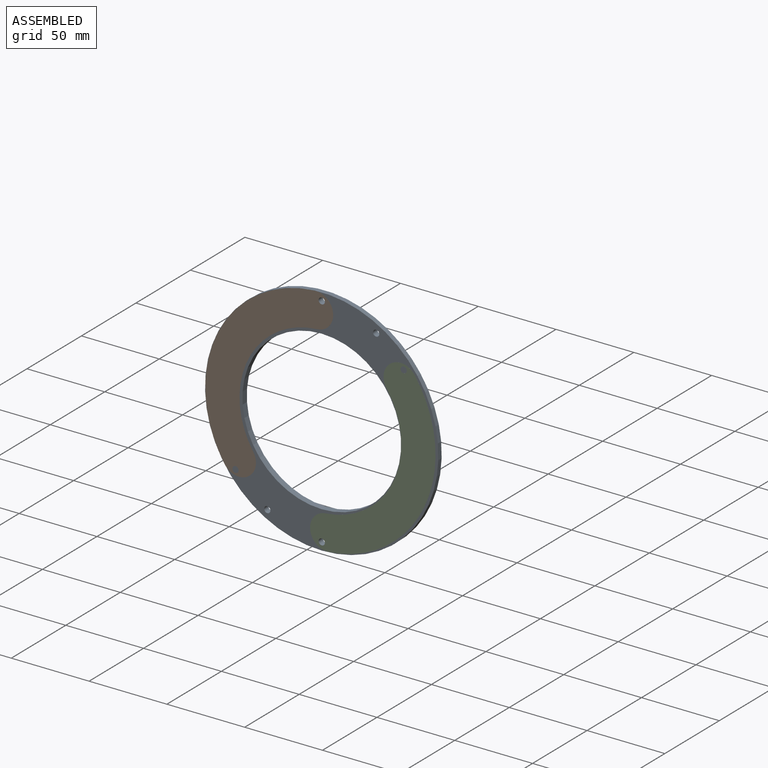
[diagram: assembled view]
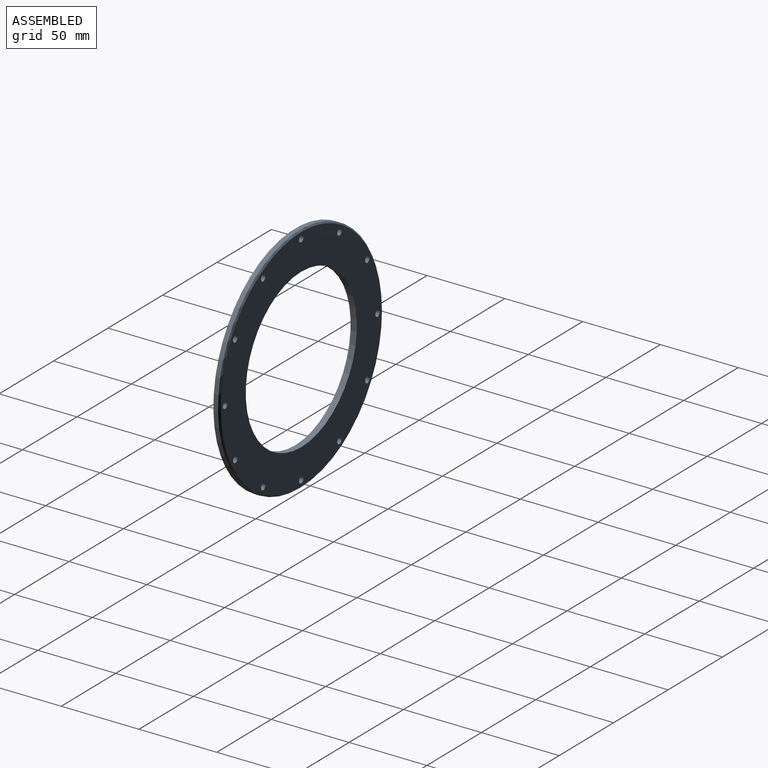
[diagram: assembled view, second angle]
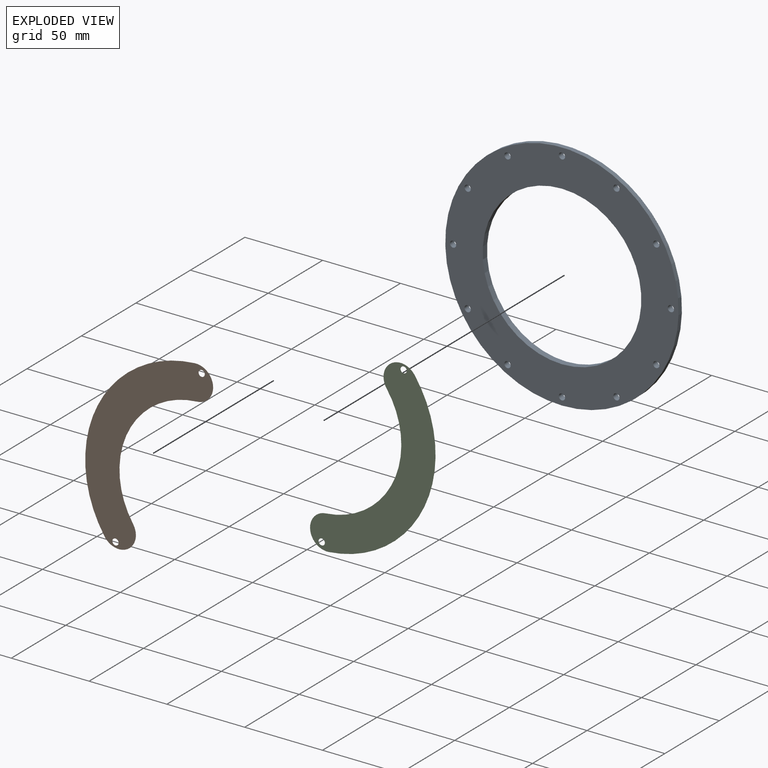
[diagram: exploded view]
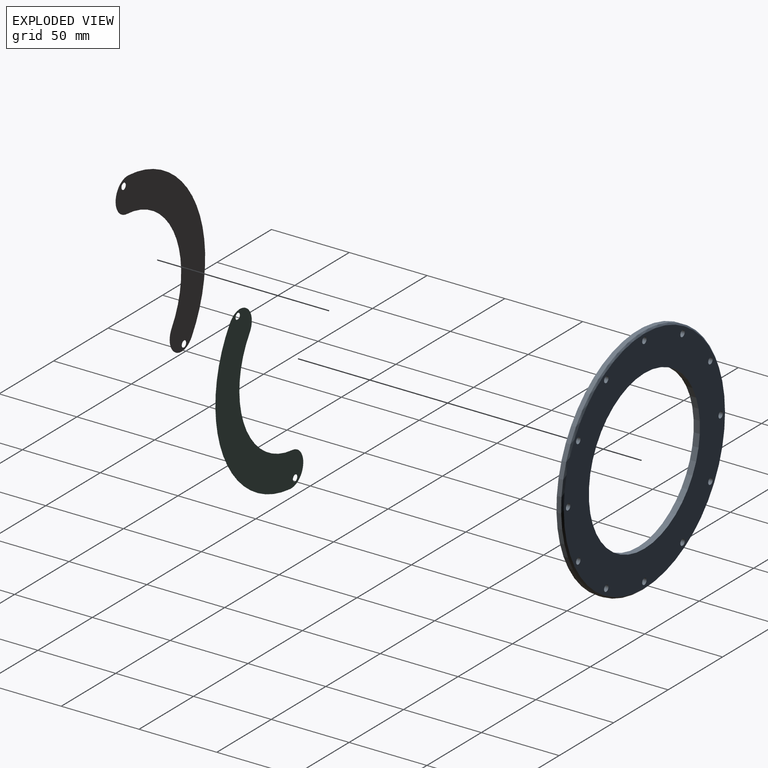
[diagram: exploded view, second angle]
ASSEMBLY  parts=3 mates=2
PART A: 17 faces, bbox 150x4x150 mm
  f0: cylinder r=51mm len=102mm, axis (0,1,0), area 1281.8mm2, adj f14,f15
  f1: cylinder r=2mm len=4mm, axis (0,1,0), area 50.3mm2, adj f14,f15
  f2: cylinder r=2mm len=4mm, axis (0,1,0), area 50.3mm2, adj f14,f15
  f3: cylinder r=2mm len=4mm, axis (0,1,0), area 50.3mm2, adj f14,f15
  f4: cylinder r=2mm len=4mm, axis (0,1,0), area 50.3mm2, adj f14,f15
  f5: cylinder r=2mm len=4mm, axis (0,1,0), area 50.3mm2, adj f14,f15
  f6: cylinder r=2mm len=4mm, axis (0,1,0), area 50.3mm2, adj f14,f15
  f7: cylinder r=2mm len=4mm, axis (0,1,0), area 50.3mm2, adj f14,f15
  f8: cylinder r=2mm len=4mm, axis (0,1,0), area 50.3mm2, adj f14,f15
  f9: cylinder r=2mm len=4mm, axis (0,1,0), area 50.3mm2, adj f14,f15
  f10: cylinder r=2mm len=4mm, axis (0,1,0), area 50.3mm2, adj f14,f15
  f11: cylinder r=2mm len=4mm, axis (0,1,0), area 50.3mm2, adj f14,f15
  f12: cylinder r=2mm len=4mm, axis (0,1,0), area 50.3mm2, adj f14,f15
  f13: cylinder r=75mm len=150mm, axis (0,1,0), area 1413.7mm2, adj f14,f16
  f14: plane 150x150mm, normal (0,-1,0), area 9349.4mm2, adj f0,f1,f2,f3,f4,f5,f6,f7
  f15: plane 148x148mm, normal (0,1,0), area 8881.3mm2, adj f0,f1,f2,f3,f4,f5,f6,f7
  f16: cone r=75mm half-angle=45deg, axis (0,-1,0), area 662mm2, adj f13,f15
PART B: 8 faces, bbox 86x0x118 mm
  f0: cylinder r=11mm len=22mm, axis (0,1,0), area 0.3mm2, adj f1,f4,f6,f7
  f1: cylinder r=75mm len=112.5mm, axis (0,1,0), area 1.6mm2, adj f0,f2,f6,f7
  f2: cylinder r=11mm len=20.53mm, axis (0,1,0), area 0.3mm2, adj f1,f4,f6,f7
  f3: cylinder r=2mm len=4mm, axis (0,1,0), area 0.1mm2, adj f6,f7
  f4: cylinder r=53mm len=79.5mm, axis (0,1,0), area 1.1mm2, adj f0,f2,f6,f7
  f5: cylinder r=2mm len=4mm, axis (0,1,0), area 0.1mm2, adj f6,f7
  f6: plane 118x86mm, normal (0,-1,0), area 3303.9mm2, adj f0,f1,f2,f3,f4,f5
  f7: plane 118x86mm, normal (0,1,0), area 3303.9mm2, adj f0,f1,f2,f3,f4,f5
PART C: same geometry as B
PLACE A t=(-39.05,-48.07,18.61)mm fixed
PLACE B rot(axis=(0,-1,0),3.4deg) t=(-38.89,-52.07,18.5)mm
PLACE C rot(axis=(0,1,0),175.2deg) t=(-40.9,-52.07,18.7)mm
MATE revolute A.f7 <-> C.f3  axis (0,-1,0) through (-39.05,-52.07,-51.39)mm
MATE revolute A.f1 <-> B.f3  axis (0,-1,0) through (-39.05,-52.07,88.61)mm
